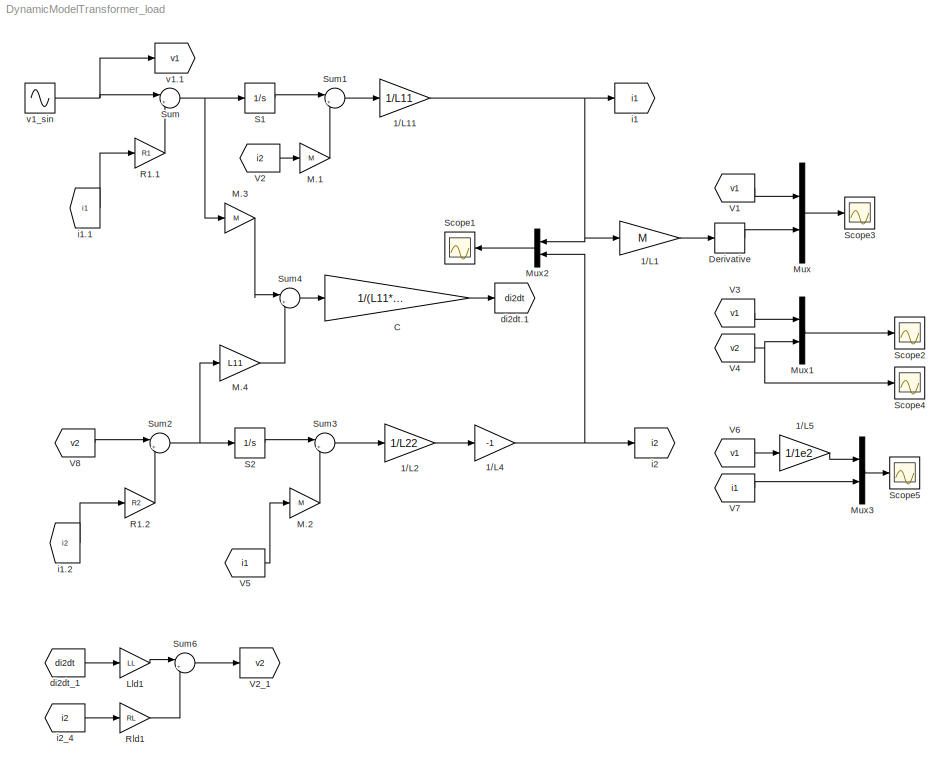
MODEL DynamicModelTransformer_load
KIND model
CONFIG InitFcn = Omega = 2*pi*50;\n\nNratio   = 10; \n\nR1       = 0.72;\nL1lkg   = 0.92/Omega;\nL1m     = 4370/Omega;\nL11      = L1m+L1lkg;\n\nR2       = 0.007;\nL2lkg   = 0.009/Omega;\nL2m     = 43.7/Omega;\nL22      = L2m+L2lkg;\n\nM         = L1m/Nratio;\n\nRL       = 0.8962;\nLL       = 0.6721/Omega;\n
BLOCK [Gain] 1//L1
  Gain = M
  OutDataTypeStr = Inherit: Inherit via internal rule
  ParamDataTypeStr = Inherit: Inherit via internal rule
  SID = 1
  SaturateOnIntegerOverflow = off
BLOCK [Gain] 1//L11
  Gain = 1/L11
  OutDataTypeStr = Inherit: Inherit via internal rule
  ParamDataTypeStr = Inherit: Inherit via internal rule
  SID = 2
  SaturateOnIntegerOverflow = off
BLOCK [Gain] 1//L2
  Gain = 1/L22
  OutDataTypeStr = Inherit: Inherit via internal rule
  ParamDataTypeStr = Inherit: Inherit via internal rule
  SID = 3
  SaturateOnIntegerOverflow = off
BLOCK [Gain] 1//L4
  Gain = -1
  OutDataTypeStr = Inherit: Inherit via internal rule
  ParamDataTypeStr = Inherit: Inherit via internal rule
  SID = 4
  SaturateOnIntegerOverflow = off
BLOCK [Gain] 1//L5
  Gain = 1/1e2
  OutDataTypeStr = Inherit: Inherit via internal rule
  ParamDataTypeStr = Inherit: Inherit via internal rule
  SID = 5
  SaturateOnIntegerOverflow = off
BLOCK [Gain] C
  Gain = 1/(L11*L22-M*M)
  OutDataTypeStr = Inherit: Inherit via internal rule
  ParamDataTypeStr = Inherit: Inherit via internal rule
  SID = 6
  SaturateOnIntegerOverflow = off
BLOCK [Derivative] Derivative
  SID = 7
BLOCK [Gain] Lld1
  Gain = LL
  OutDataTypeStr = Inherit: Inherit via internal rule
  ParamDataTypeStr = Inherit: Inherit via internal rule
  SID = 8
  SaturateOnIntegerOverflow = off
BLOCK [Gain] M.1
  Gain = M
  OutDataTypeStr = Inherit: Inherit via internal rule
  ParamDataTypeStr = Inherit: Inherit via internal rule
  SID = 9
  SaturateOnIntegerOverflow = off
BLOCK [Gain] M.2
  Gain = M
  OutDataTypeStr = Inherit: Inherit via internal rule
  ParamDataTypeStr = Inherit: Inherit via internal rule
  SID = 10
  SaturateOnIntegerOverflow = off
BLOCK [Gain] M.3
  Gain = M
  OutDataTypeStr = Inherit: Inherit via internal rule
  ParamDataTypeStr = Inherit: Inherit via internal rule
  SID = 11
  SaturateOnIntegerOverflow = off
BLOCK [Gain] M.4
  Gain = L11
  OutDataTypeStr = Inherit: Inherit via internal rule
  ParamDataTypeStr = Inherit: Inherit via internal rule
  SID = 12
  SaturateOnIntegerOverflow = off
BLOCK [Mux] Mux
  DisplayOption = bar
  Inputs = 2
  Ports = [2, 1]
  SID = 13
BLOCK [Mux] Mux1
  DisplayOption = bar
  Inputs = 2
  Ports = [2, 1]
  SID = 14
BLOCK [Mux] Mux2
  DisplayOption = bar
  Inputs = 2
  Ports = [2, 1]
  SID = 15
BLOCK [Mux] Mux3
  DisplayOption = bar
  Inputs = 2
  Ports = [2, 1]
  SID = 16
BLOCK [Gain] R1.1
  Gain = R1
  OutDataTypeStr = Inherit: Inherit via internal rule
  ParamDataTypeStr = Inherit: Inherit via internal rule
  SID = 17
  SaturateOnIntegerOverflow = off
BLOCK [Gain] R1.2
  Gain = R2
  OutDataTypeStr = Inherit: Inherit via internal rule
  ParamDataTypeStr = Inherit: Inherit via internal rule
  SID = 18
  SaturateOnIntegerOverflow = off
BLOCK [Gain] Rld1
  Gain = RL
  OutDataTypeStr = Inherit: Inherit via internal rule
  ParamDataTypeStr = Inherit: Inherit via internal rule
  SID = 19
  SaturateOnIntegerOverflow = off
BLOCK [Integrator] S1
  Ports = [1, 1]
  SID = 20
BLOCK [Integrator] S2
  Ports = [1, 1]
  SID = 21
BLOCK [Scope] Scope1
  DataFormat = StructureWithTime
  Floating = off
  LimitDataPoints = off
  NumInputPorts = 1
  Ports = [1]
  SID = 22
  SampleTime = 0
  TimeRange = 0.05086362794936428
  YMax = 1.2
  YMin = -0.1
BLOCK [Scope] Scope2
  DataFormat = StructureWithTime
  Floating = off
  LimitDataPoints = off
  NumInputPorts = 1
  Ports = [1]
  SID = 23
  SampleTime = 0
  SaveName = ScopeData1
  TimeRange = 0.05179845422116514
  YMax = 2705.607476635514
  YMin = -2957.943925233645
  ZoomMode = xonly
BLOCK [Scope] Scope3
  DataFormat = StructureWithTime
  Floating = off
  LimitDataPoints = off
  NumInputPorts = 1
  Ports = [1]
  SID = 24
  SampleTime = 0
  SaveName = ScopeData2
  ZoomMode = xonly
BLOCK [Scope] Scope4
  DataFormat = StructureWithTime
  Floating = off
  LimitDataPoints = off
  NumInputPorts = 1
  Ports = [1]
  SID = 25
  SampleTime = 0
  SaveName = ScopeData3
  YMax = 100
  YMin = -100
  ZoomMode = xonly
BLOCK [Scope] Scope5
  DataFormat = StructureWithTime
  Floating = off
  LimitDataPoints = off
  NumInputPorts = 1
  Ports = [1]
  SID = 26
  SampleTime = 0
  SaveName = ScopeData4
  TimeRange = 0.04770744137131677
  YMax = 24.89224137931034
  YMin = -25
  ZoomMode = xonly
BLOCK [Sum] Sum
  IconShape = round
  InputSameDT = off
  Inputs = |+-
  OutDataTypeStr = Inherit: Inherit via internal rule
  Ports = [2, 1]
  SID = 27
  SaturateOnIntegerOverflow = off
BLOCK [Sum] Sum1
  IconShape = round
  InputSameDT = off
  Inputs = |++
  OutDataTypeStr = Inherit: Inherit via internal rule
  Ports = [2, 1]
  SID = 28
  SaturateOnIntegerOverflow = off
BLOCK [Sum] Sum2
  IconShape = round
  InputSameDT = off
  Inputs = |++
  OutDataTypeStr = Inherit: Inherit via internal rule
  Ports = [2, 1]
  SID = 29
  SaturateOnIntegerOverflow = off
BLOCK [Sum] Sum3
  IconShape = round
  InputSameDT = off
  Inputs = |+-
  OutDataTypeStr = Inherit: Inherit via internal rule
  Ports = [2, 1]
  SID = 30
  SaturateOnIntegerOverflow = off
BLOCK [Sum] Sum4
  IconShape = round
  InputSameDT = off
  Inputs = |+-
  OutDataTypeStr = Inherit: Inherit via internal rule
  Ports = [2, 1]
  SID = 31
  SaturateOnIntegerOverflow = off
BLOCK [Sum] Sum6
  IconShape = round
  InputSameDT = off
  Inputs = |++
  OutDataTypeStr = Inherit: Inherit via internal rule
  Ports = [2, 1]
  SID = 32
  SaturateOnIntegerOverflow = off
BLOCK [From] V1
  CloseFcn = tagdialog Close
  GotoTag = v1
  SID = 33
BLOCK [From] V2
  CloseFcn = tagdialog Close
  GotoTag = i2
  SID = 34
BLOCK [Goto] V2_1
  GotoTag = v2
  SID = 35
  TagVisibility = local
BLOCK [From] V3
  CloseFcn = tagdialog Close
  GotoTag = v1
  SID = 36
BLOCK [From] V4
  CloseFcn = tagdialog Close
  GotoTag = v2
  SID = 37
BLOCK [From] V5
  CloseFcn = tagdialog Close
  GotoTag = i1
  SID = 38
BLOCK [From] V6
  CloseFcn = tagdialog Close
  GotoTag = v1
  SID = 39
BLOCK [From] V7
  CloseFcn = tagdialog Close
  GotoTag = i1
  SID = 40
BLOCK [From] V8
  CloseFcn = tagdialog Close
  GotoTag = v2
  SID = 41
BLOCK [Goto] di2dt.1
  GotoTag = di2dt
  SID = 42
  TagVisibility = local
BLOCK [From] di2dt_1
  CloseFcn = tagdialog Close
  GotoTag = di2dt
  SID = 43
BLOCK [Goto] i1
  GotoTag = i1
  SID = 44
  TagVisibility = local
BLOCK [From] i1.1
  CloseFcn = tagdialog Close
  GotoTag = i1
  SID = 45
BLOCK [From] i1.2
  CloseFcn = tagdialog Close
  GotoTag = i2
  SID = 46
BLOCK [Goto] i2
  GotoTag = i2
  SID = 47
  TagVisibility = local
BLOCK [From] i2_4
  CloseFcn = tagdialog Close
  GotoTag = i2
  SID = 48
BLOCK [Goto] v1.1
  GotoTag = v1
  SID = 49
  TagVisibility = local
BLOCK [Sin] v1_sin
  Amplitude = 2400
  Frequency = 2*pi*50
  Phase = pi/2*0
  Ports = [0, 1]
  SID = 50
  SampleTime = 0
NET 1//L11:1 -> 1//L1:1, Mux2:1, i1:1
LINE 1//L1:1 -> Derivative:1
LINE 1//L2:1 -> 1//L4:1
NET 1//L4:1 -> Mux2:2, i2:1
LINE 1//L5:1 -> Mux3:1
LINE C:1 -> di2dt.1:1
LINE Derivative:1 -> Mux:2
LINE Lld1:1 -> Sum6:1
LINE M.1:1 -> Sum1:2
LINE M.2:1 -> Sum3:2
LINE M.3:1 -> Sum4:1
LINE M.4:1 -> Sum4:2
LINE Mux1:1 -> Scope2:1
LINE Mux2:1 -> Scope1:1
LINE Mux3:1 -> Scope5:1
LINE Mux:1 -> Scope3:1
LINE R1.1:1 -> Sum:2
LINE R1.2:1 -> Sum2:2
LINE Rld1:1 -> Sum6:2
LINE S1:1 -> Sum1:1
LINE S2:1 -> Sum3:1
LINE Sum1:1 -> 1//L11:1
NET Sum2:1 -> M.4:1, S2:1
LINE Sum3:1 -> 1//L2:1
LINE Sum4:1 -> C:1
LINE Sum6:1 -> V2_1:1
NET Sum:1 -> M.3:1, S1:1
LINE V1:1 -> Mux:1
LINE V2:1 -> M.1:1
LINE V3:1 -> Mux1:1
NET V4:1 -> Mux1:2, Scope4:1
LINE V5:1 -> M.2:1
LINE V6:1 -> 1//L5:1
LINE V7:1 -> Mux3:2
LINE V8:1 -> Sum2:1
LINE di2dt_1:1 -> Lld1:1
LINE i1.1:1 -> R1.1:1
LINE i1.2:1 -> R1.2:1
LINE i2_4:1 -> Rld1:1
NET v1_sin:1 -> Sum:1, v1.1:1
note: NET lines group one-source signal fan-out (src -> all destinations, sorted); 1:1 wires keep LINE
